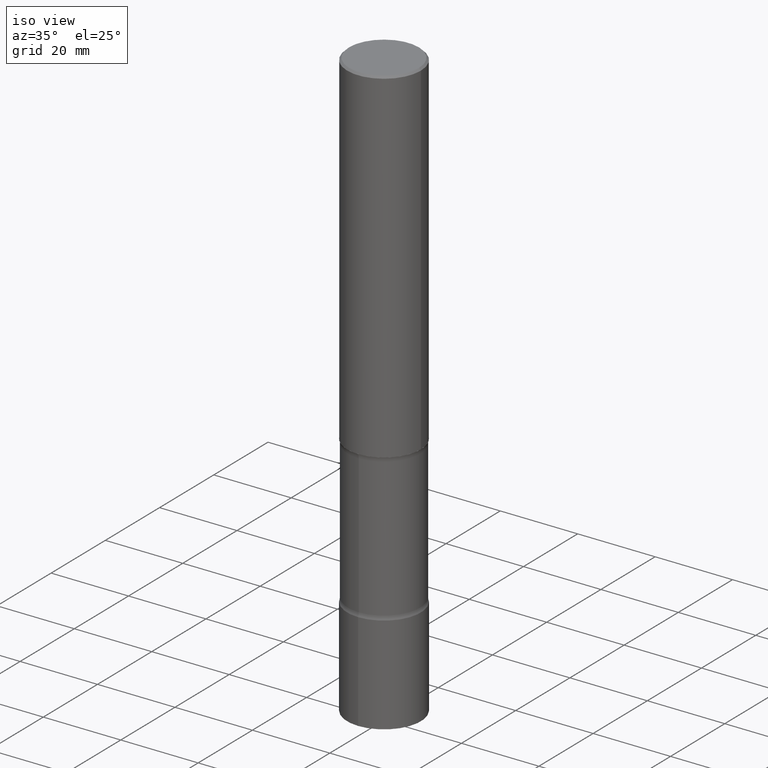
[diagram: clean part render]
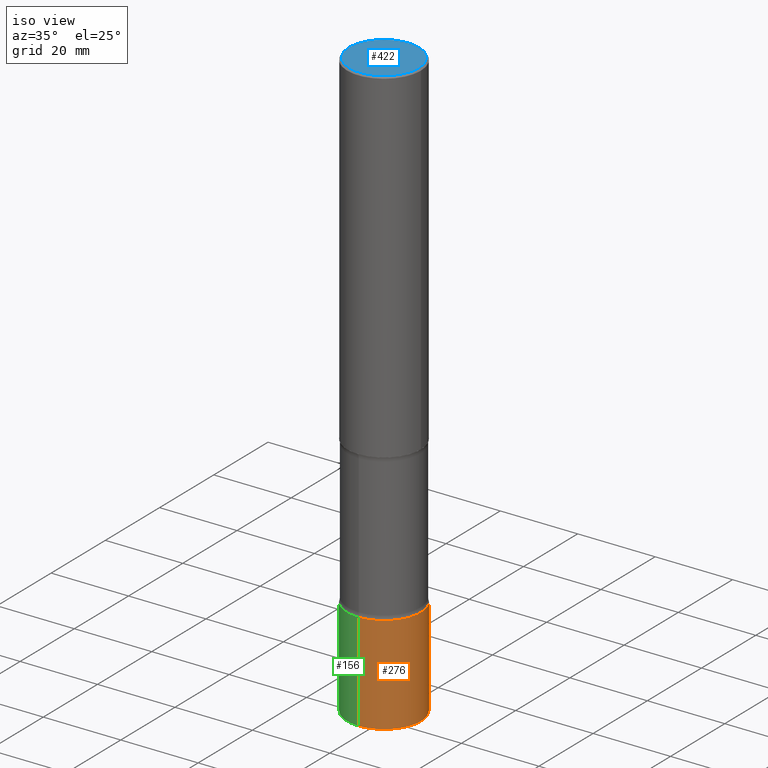
[diagram: same view with three faces highlighted in distinct colors, each labeled with its STEP entity id]
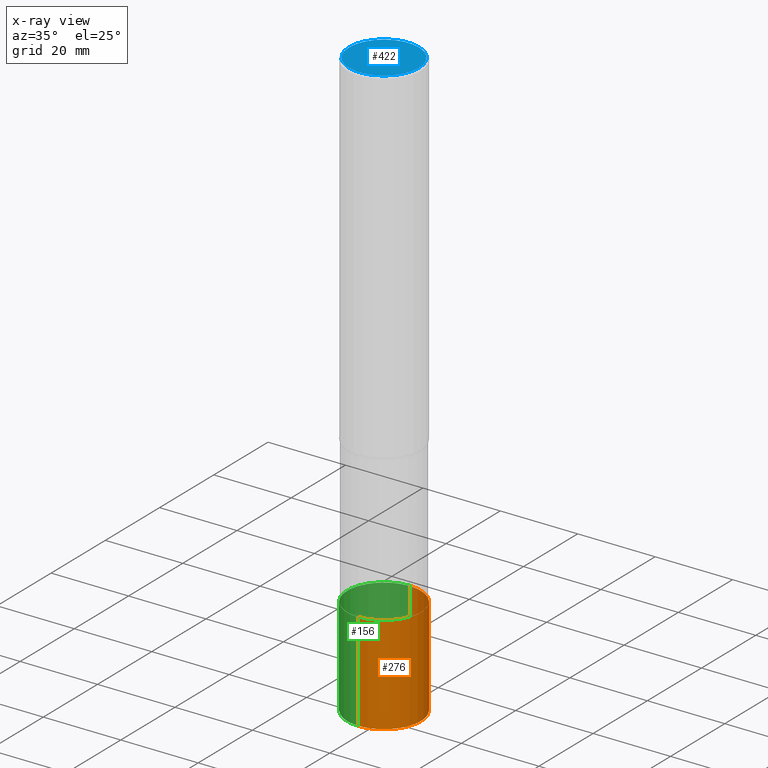
[diagram: x-ray of the same camera — body ghosted, the three highlighted faces saturated]
A machine part, iso view with three faces highlighted in distinct colors.
The next image is the same camera in x-ray (body ghosted, the three faces saturated) — at least one of them is partly hidden behind the body in this view.
Their STEP definitions:

[orange] entity #276 — the highlighted cylindrical surface (partial cylindrical patch) has radius 9.525 mm, axis along (-0, 0, 1).
#2 = DIRECTION ( 'NONE',  ( -2.445201761866351405E-29, 3.491863761506864371E-15, 1.000000000000000000 ) ) ;
#9 = DIRECTION ( 'NONE',  ( -2.445201761866351405E-29, 3.491863761506864371E-15, 1.000000000000000000 ) ) ;
#35 = VERTEX_POINT ( 'NONE', #166 ) ;
#47 = CARTESIAN_POINT ( 'NONE',  ( -2.618611004132228137E-15, -0.3750000000000175970, -4.999999999999999112 ) ) ;
#62 = LINE ( 'NONE', #440, #319 ) ;
#64 = VERTEX_POINT ( 'NONE', #47 ) ;
#75 = AXIS2_PLACEMENT_3D ( 'NONE', #322, #9, #288 ) ;
#91 = DIRECTION ( 'NONE',  ( -2.445201761866351405E-29, 3.491863761506864371E-15, 1.000000000000000000 ) ) ;
#95 = DIRECTION ( 'NONE',  ( -6.982962677686265922E-15, -1.000000000000000000, 2.913971193241879977E-15 ) ) ;
#119 = CARTESIAN_POINT ( 'NONE',  ( -2.618611004132204077E-15, -0.3750000000000210387, -5.999999999999999112 ) ) ;
#122 = CYLINDRICAL_SURFACE ( 'NONE', #75, 0.3750000000000001110 ) ;
#132 = DIRECTION ( 'NONE',  ( -2.445201761866351405E-29, 3.491863761506864371E-15, 1.000000000000000000 ) ) ;
#137 = AXIS2_PLACEMENT_3D ( 'NONE', #358, #2, #95 ) ;
#147 = EDGE_CURVE ( 'NONE', #269, #64, #418, .T. ) ;
#151 = EDGE_LOOP ( 'NONE', ( #488, #463, #310, #196 ) ) ;
#166 = CARTESIAN_POINT ( 'NONE',  ( 2.664535259100510198E-15, 0.3749999999999791278, -6.000000000000001776 ) ) ;
#196 = ORIENTED_EDGE ( 'NONE', *, *, #147, .F. ) ;
#202 = EDGE_CURVE ( 'NONE', #64, #228, #261, .T. ) ;
#216 = DIRECTION ( 'NONE',  ( -2.445201761866351405E-29, 3.491863761506864371E-15, 1.000000000000000000 ) ) ;
#219 = CARTESIAN_POINT ( 'NONE',  ( -2.618611004132350411E-15, -0.3750000000000001110, 1.309448910565074484E-15 ) ) ;
#228 = VERTEX_POINT ( 'NONE', #296 ) ;
#249 = EDGE_CURVE ( 'NONE', #35, #228, #62, .T. ) ;
#261 = CIRCLE ( 'NONE', #328, 0.3750000000000001110 ) ;
#269 = VERTEX_POINT ( 'NONE', #119 ) ;
#276 = ADVANCED_FACE ( 'NONE', ( #365 ), #122, .T. ) ;
#283 = EDGE_CURVE ( 'NONE', #269, #35, #363, .T. ) ;
#288 = DIRECTION ( 'NONE',  ( -6.982962677686265922E-15, -1.000000000000000000, 3.491863761506864371E-15 ) ) ;
#296 = CARTESIAN_POINT ( 'NONE',  ( 2.664535259100522820E-15, 0.3749999999999826250, -5.000000000000000888 ) ) ;
#310 = ORIENTED_EDGE ( 'NONE', *, *, #202, .F. ) ;
#319 = VECTOR ( 'NONE', #91, 39.37007874015748143 ) ;
#322 = CARTESIAN_POINT ( 'NONE',  ( 0.000000000000000000, 0.000000000000000000, 0.000000000000000000 ) ) ;
#328 = AXIS2_PLACEMENT_3D ( 'NONE', #482, #132, #333 ) ;
#333 = DIRECTION ( 'NONE',  ( -6.982962677686265922E-15, -1.000000000000000000, 2.913971193241879977E-15 ) ) ;
#358 = CARTESIAN_POINT ( 'NONE',  ( 1.467121057119811123E-28, -2.095118256904118859E-14, -6.000000000000000888 ) ) ;
#363 = CIRCLE ( 'NONE', #137, 0.3750000000000001110 ) ;
#365 = FACE_OUTER_BOUND ( 'NONE', #151, .T. ) ;
#418 = LINE ( 'NONE', #219, #502 ) ;
#440 = CARTESIAN_POINT ( 'NONE',  ( 2.664535259100376091E-15, 0.3750000000000001110, -1.309448910565074484E-15 ) ) ;
#463 = ORIENTED_EDGE ( 'NONE', *, *, #249, .T. ) ;
#482 = CARTESIAN_POINT ( 'NONE',  ( 1.222600880933175787E-28, -1.745931880753432383E-14, -5.000000000000000000 ) ) ;
#488 = ORIENTED_EDGE ( 'NONE', *, *, #283, .T. ) ;
#502 = VECTOR ( 'NONE', #216, 39.37007874015748143 ) ;

[blue] entity #422 — the highlighted planar face has unit normal (0, -0, -1).
#41 = CARTESIAN_POINT ( 'NONE',  ( -1.043851414335219820E-46, 1.490343170380447200E-32, 4.268512490100411279E-18 ) ) ;
#70 = EDGE_LOOP ( 'NONE', ( #85, #103 ) ) ;
#80 = EDGE_CURVE ( 'NONE', #505, #497, #267, .T. ) ;
#85 = ORIENTED_EDGE ( 'NONE', *, *, #80, .T. ) ;
#103 = ORIENTED_EDGE ( 'NONE', *, *, #308, .T. ) ;
#130 = CARTESIAN_POINT ( 'NONE',  ( -1.043851414335219820E-46, 1.490343170380447200E-32, 4.268512490100411279E-18 ) ) ;
#184 = FACE_OUTER_BOUND ( 'NONE', #70, .T. ) ;
#254 = DIRECTION ( 'NONE',  ( -1.000000000000000000, 6.982962677686265922E-15, -4.876176775795935793E-29 ) ) ;
#267 = CIRCLE ( 'NONE', #472, 0.3549999999999997047 ) ;
#281 = DIRECTION ( 'NONE',  ( 1.000000000000000000, -6.982962677686265922E-15, 4.876231632511992107E-29 ) ) ;
#282 = DIRECTION ( 'NONE',  ( -2.445468806185136597E-29, 3.491481338843145583E-15, 1.000000000000000000 ) ) ;
#291 = DIRECTION ( 'NONE',  ( 1.000000000000000000, -6.982962677686265922E-15, 4.876231632511992107E-29 ) ) ;
#300 = CARTESIAN_POINT ( 'NONE',  ( 0.3549999999999997047, -2.538996582575039076E-15, 4.268512490117958041E-18 ) ) ;
#308 = EDGE_CURVE ( 'NONE', #497, #505, #399, .T. ) ;
#338 = CARTESIAN_POINT ( 'NONE',  ( 2.478951750578622237E-15, 0.3549999999999997047, -1.237341619044265441E-15 ) ) ;
#349 = AXIS2_PLACEMENT_3D ( 'NONE', #338, #492, #254 ) ;
#382 = CARTESIAN_POINT ( 'NONE',  ( -0.3549999999999997047, 2.513866563967053491E-15, 4.268512490082953109E-18 ) ) ;
#399 = CIRCLE ( 'NONE', #467, 0.3549999999999997047 ) ;
#422 = ADVANCED_FACE ( 'NONE', ( #184 ), #452, .F. ) ;
#452 = PLANE ( 'NONE',  #349 ) ;
#467 = AXIS2_PLACEMENT_3D ( 'NONE', #130, #282, #291 ) ;
#472 = AXIS2_PLACEMENT_3D ( 'NONE', #41, #476, #281 ) ;
#476 = DIRECTION ( 'NONE',  ( -2.445468806185136597E-29, 3.491481338843145583E-15, 1.000000000000000000 ) ) ;
#492 = DIRECTION ( 'NONE',  ( 2.438088387897960049E-29, -3.491481338843145188E-15, -1.000000000000000000 ) ) ;
#497 = VERTEX_POINT ( 'NONE', #300 ) ;
#505 = VERTEX_POINT ( 'NONE', #382 ) ;

[green] entity #156 — the highlighted cylindrical surface (partial cylindrical patch) has radius 9.525 mm, axis along (-0, 0, 1).
#8 = DIRECTION ( 'NONE',  ( -2.445201761866351405E-29, 3.491863761506864371E-15, 1.000000000000000000 ) ) ;
#20 = CARTESIAN_POINT ( 'NONE',  ( 1.467121057119811123E-28, -2.095118256904118859E-14, -6.000000000000000888 ) ) ;
#24 = DIRECTION ( 'NONE',  ( -2.445201761866351405E-29, 3.491863761506864371E-15, 1.000000000000000000 ) ) ;
#35 = VERTEX_POINT ( 'NONE', #166 ) ;
#38 = AXIS2_PLACEMENT_3D ( 'NONE', #342, #24, #213 ) ;
#47 = CARTESIAN_POINT ( 'NONE',  ( -2.618611004132228137E-15, -0.3750000000000175970, -4.999999999999999112 ) ) ;
#59 = FACE_OUTER_BOUND ( 'NONE', #107, .T. ) ;
#62 = LINE ( 'NONE', #440, #319 ) ;
#64 = VERTEX_POINT ( 'NONE', #47 ) ;
#68 = DIRECTION ( 'NONE',  ( -2.445201761866351405E-29, 3.491863761506864371E-15, 1.000000000000000000 ) ) ;
#91 = DIRECTION ( 'NONE',  ( -2.445201761866351405E-29, 3.491863761506864371E-15, 1.000000000000000000 ) ) ;
#107 = EDGE_LOOP ( 'NONE', ( #260, #458, #194, #129 ) ) ;
#119 = CARTESIAN_POINT ( 'NONE',  ( -2.618611004132204077E-15, -0.3750000000000210387, -5.999999999999999112 ) ) ;
#128 = EDGE_CURVE ( 'NONE', #228, #64, #420, .T. ) ;
#129 = ORIENTED_EDGE ( 'NONE', *, *, #128, .F. ) ;
#147 = EDGE_CURVE ( 'NONE', #269, #64, #418, .T. ) ;
#156 = ADVANCED_FACE ( 'NONE', ( #59 ), #294, .T. ) ;
#166 = CARTESIAN_POINT ( 'NONE',  ( 2.664535259100510198E-15, 0.3749999999999791278, -6.000000000000001776 ) ) ;
#194 = ORIENTED_EDGE ( 'NONE', *, *, #147, .T. ) ;
#213 = DIRECTION ( 'NONE',  ( -6.982962677686265922E-15, -1.000000000000000000, 3.491863761506864371E-15 ) ) ;
#216 = DIRECTION ( 'NONE',  ( -2.445201761866351405E-29, 3.491863761506864371E-15, 1.000000000000000000 ) ) ;
#219 = CARTESIAN_POINT ( 'NONE',  ( -2.618611004132350411E-15, -0.3750000000000001110, 1.309448910565074484E-15 ) ) ;
#228 = VERTEX_POINT ( 'NONE', #296 ) ;
#249 = EDGE_CURVE ( 'NONE', #35, #228, #62, .T. ) ;
#260 = ORIENTED_EDGE ( 'NONE', *, *, #249, .F. ) ;
#269 = VERTEX_POINT ( 'NONE', #119 ) ;
#294 = CYLINDRICAL_SURFACE ( 'NONE', #38, 0.3750000000000001110 ) ;
#296 = CARTESIAN_POINT ( 'NONE',  ( 2.664535259100522820E-15, 0.3749999999999826250, -5.000000000000000888 ) ) ;
#307 = CIRCLE ( 'NONE', #461, 0.3750000000000001110 ) ;
#319 = VECTOR ( 'NONE', #91, 39.37007874015748143 ) ;
#325 = CARTESIAN_POINT ( 'NONE',  ( 1.222600880933175787E-28, -1.745931880753432383E-14, -5.000000000000000000 ) ) ;
#342 = CARTESIAN_POINT ( 'NONE',  ( 0.000000000000000000, 0.000000000000000000, 0.000000000000000000 ) ) ;
#380 = DIRECTION ( 'NONE',  ( -6.982962677686265922E-15, -1.000000000000000000, 2.913971193241879977E-15 ) ) ;
#402 = DIRECTION ( 'NONE',  ( -6.982962677686265922E-15, -1.000000000000000000, 2.913971193241879977E-15 ) ) ;
#418 = LINE ( 'NONE', #219, #502 ) ;
#420 = CIRCLE ( 'NONE', #433, 0.3750000000000001110 ) ;
#433 = AXIS2_PLACEMENT_3D ( 'NONE', #325, #8, #402 ) ;
#440 = CARTESIAN_POINT ( 'NONE',  ( 2.664535259100376091E-15, 0.3750000000000001110, -1.309448910565074484E-15 ) ) ;
#458 = ORIENTED_EDGE ( 'NONE', *, *, #479, .T. ) ;
#461 = AXIS2_PLACEMENT_3D ( 'NONE', #20, #68, #380 ) ;
#479 = EDGE_CURVE ( 'NONE', #35, #269, #307, .T. ) ;
#502 = VECTOR ( 'NONE', #216, 39.37007874015748143 ) ;